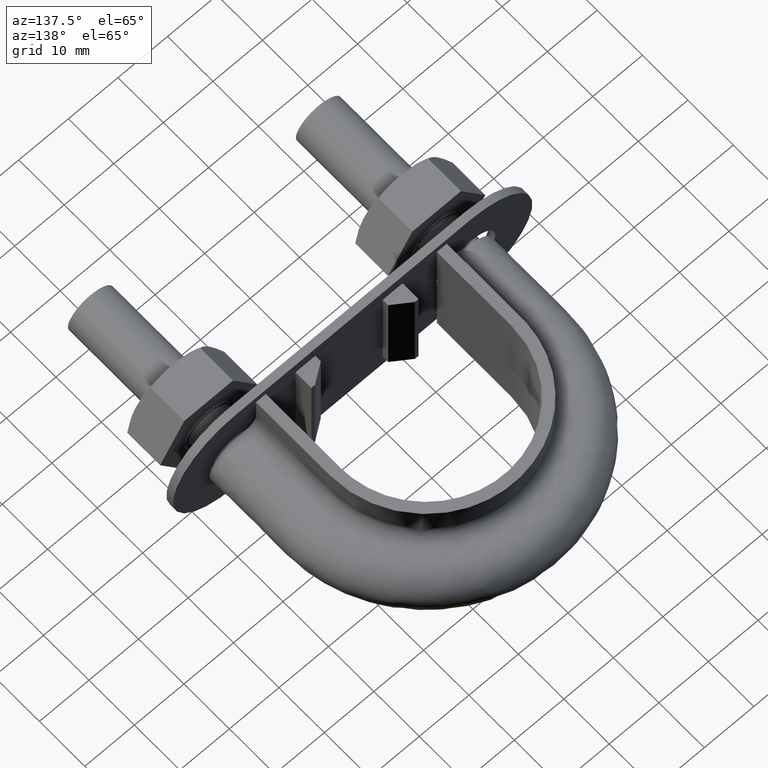
[diagram: clean part render]
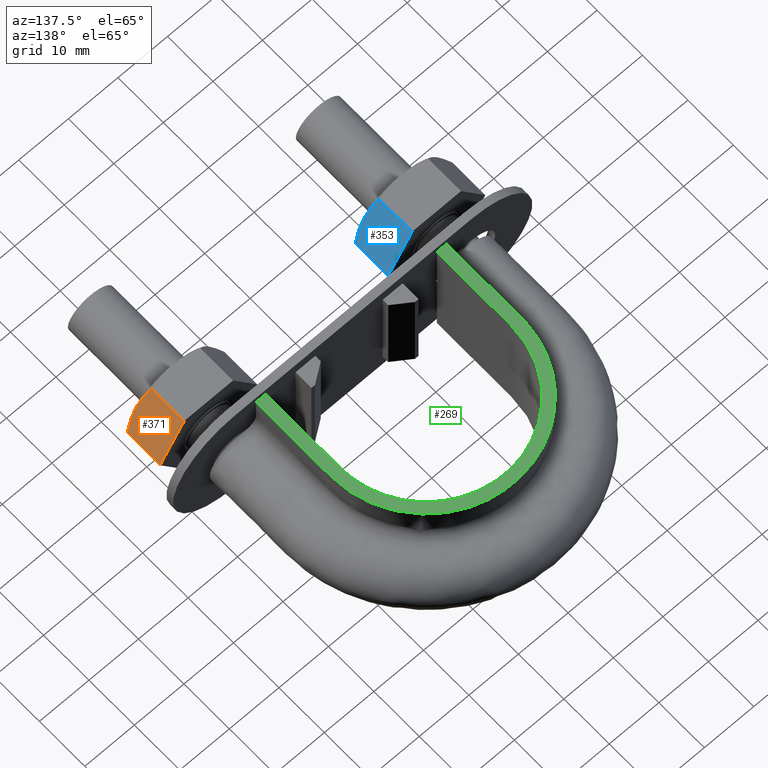
[diagram: same view with three faces highlighted in distinct colors, each labeled with its STEP entity id]
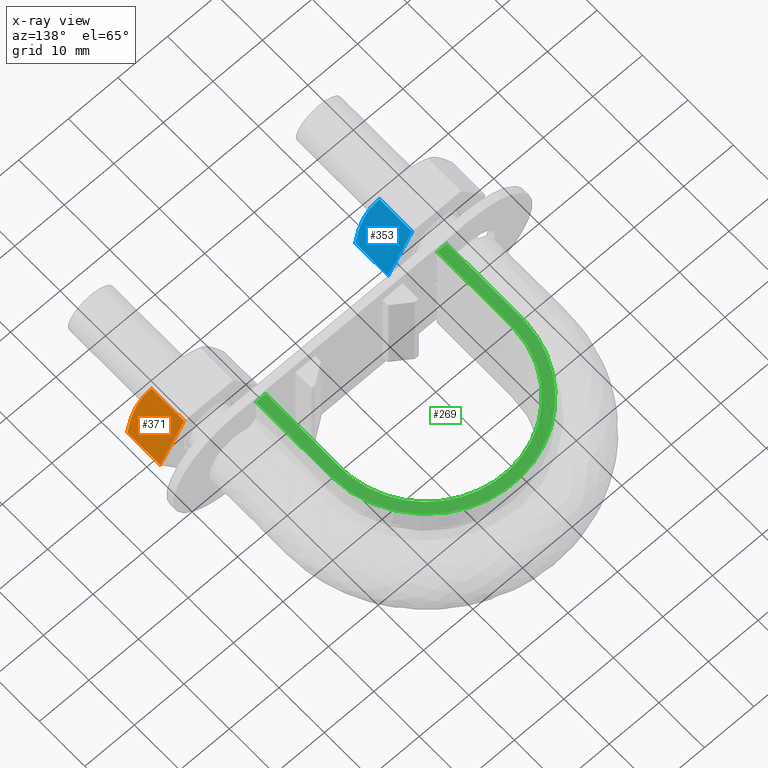
[diagram: x-ray of the same camera — body ghosted, the three highlighted faces saturated]
A machine part, auxiliary view with three faces highlighted in distinct colors.
The next image is the same camera in x-ray (body ghosted, the three faces saturated) — at least one of them is partly hidden behind the body in this view.
Their STEP definitions:

[orange] entity #371 — the highlighted planar face has unit normal (-0.866, 0, -0.5).
#371 = ADVANCED_FACE( '', ( #616 ), #617, .F. );
#616 = FACE_OUTER_BOUND( '', #1694, .T. );
#617 = PLANE( '', #1695 );
#1694 = EDGE_LOOP( '', ( #2460, #2461, #2462, #2463, #2464 ) );
#1695 = AXIS2_PLACEMENT_3D( '', #2465, #2466, #2467 );
#2460 = ORIENTED_EDGE( '', *, *, #2702, .F. );
#2461 = ORIENTED_EDGE( '', *, *, #2706, .F. );
#2462 = ORIENTED_EDGE( '', *, *, #2743, .F. );
#2463 = ORIENTED_EDGE( '', *, *, #2744, .F. );
#2464 = ORIENTED_EDGE( '', *, *, #2745, .F. );
#2465 = CARTESIAN_POINT( '', ( 27.9074772888217, 26.0000000000000, 8.49999999959008 ) );
#2466 = DIRECTION( '', ( -0.866025403826197, 3.65183836625084E-016, -0.499999999927673 ) );
#2467 = DIRECTION( '', ( -0.499999999927673, 0.000000000000000, 0.866025403826197 ) );
#2702 = EDGE_CURVE( '', #3058, #3054, #3060, .T. );
#2706 = EDGE_CURVE( '', #3065, #3058, #3067, .T. );
#2743 = EDGE_CURVE( '', #3128, #3065, #3129, .F. );
#2744 = EDGE_CURVE( '', #3130, #3128, #3131, .T. );
#2745 = EDGE_CURVE( '', #3054, #3130, #3132, .T. );
#3054 = VERTEX_POINT( '', #3780 );
#3058 = VERTEX_POINT( '', #3789 );
#3060 = B_SPLINE_CURVE_WITH_KNOTS( '', 3, ( #3791, #3792, #3793, #3794, #3795, #3796 ), .UNSPECIFIED., .F., .F., ( 4, 2, 4 ), ( 8.67361737988404E-019, 0.00246745482903609, 0.00493490965807218 ), .UNSPECIFIED. );
#3065 = VERTEX_POINT( '', #3806 );
#3067 = B_SPLINE_CURVE_WITH_KNOTS( '', 3, ( #3808, #3809, #3810, #3811, #3812, #3813 ), .UNSPECIFIED., .F., .F., ( 4, 2, 4 ), ( 2.91223597731713E-017, 0.00246745482903606, 0.00493490965807210 ), .UNSPECIFIED. );
#3128 = VERTEX_POINT( '', #3929 );
#3129 = LINE( '', #3930, #3931 );
#3130 = VERTEX_POINT( '', #3932 );
#3131 = LINE( '', #3933, #3934 );
#3132 = LINE( '', #3935, #3936 );
#3780 = CARTESIAN_POINT( '', ( 27.9224662532239, 18.7505553499468, 8.47403835168753 ) );
#3789 = CARTESIAN_POINT( '', ( 30.3612159325227, 18.0000000000003, 4.24999999938519 ) );
#3791 = CARTESIAN_POINT( '', ( 30.3612159325226, 18.0000000000003, 4.24999999938518 ) );
#3792 = CARTESIAN_POINT( '', ( 29.9451329574875, 18.0000000000003, 4.97067685244951 ) );
#3793 = CARTESIAN_POINT( '', ( 29.5345628087994, 18.0716504305293, 5.68180521018555 ) );
#3794 = CARTESIAN_POINT( '', ( 28.7224943449282, 18.3328582843709, 7.08834904910605 ) );
#3795 = CARTESIAN_POINT( '', ( 28.3209300794792, 18.5215585493659, 7.78387875950211 ) );
#3796 = CARTESIAN_POINT( '', ( 27.9224662532240, 18.7505553499468, 8.47403835168750 ) );
#3806 = CARTESIAN_POINT( '', ( 32.7999656118213, 18.7505553499468, 0.0259616470828684 ) );
#3808 = CARTESIAN_POINT( '', ( 32.7999656118213, 18.7505553499468, 0.0259616470828944 ) );
#3809 = CARTESIAN_POINT( '', ( 32.4015017855661, 18.5215585493659, 0.716121239268269 ) );
#3810 = CARTESIAN_POINT( '', ( 31.9999375201170, 18.3328582843709, 1.41165094966437 ) );
#3811 = CARTESIAN_POINT( '', ( 31.1878690562459, 18.0716504305293, 2.81819478858484 ) );
#3812 = CARTESIAN_POINT( '', ( 30.7772989075578, 18.0000000000003, 3.52932314632086 ) );
#3813 = CARTESIAN_POINT( '', ( 30.3612159325226, 18.0000000000003, 4.24999999938518 ) );
#3929 = CARTESIAN_POINT( '', ( 32.7999656118213, 26.0000000000000, 0.0259616470828523 ) );
#3930 = CARTESIAN_POINT( '', ( 32.7999656118213, 26.0000000000000, 0.0259616470828505 ) );
#3931 = VECTOR( '', #4265, 1000.00000000000 );
#3932 = CARTESIAN_POINT( '', ( 27.9224662532239, 26.0000000000000, 8.47403835168756 ) );
#3933 = CARTESIAN_POINT( '', ( 27.9112159328771, 26.0000000000000, 8.49352447813351 ) );
#3934 = VECTOR( '', #4266, 1000.00000000000 );
#3935 = CARTESIAN_POINT( '', ( 27.9224662532239, 26.0000000000000, 8.47403835168756 ) );
#3936 = VECTOR( '', #4267, 1000.00000000000 );
#4265 = DIRECTION( '', ( 2.44921270764475E-016, 1.00000000000000, 3.06151588455595E-016 ) );
#4266 = DIRECTION( '', ( 0.499999999927673, 1.42674417659764E-016, -0.866025403826197 ) );
#4267 = DIRECTION( '', ( 2.44921270764475E-016, 1.00000000000000, 3.06151588455595E-016 ) );

[blue] entity #353 — the highlighted planar face has unit normal (-0.866, 0, -0.5).
#353 = ADVANCED_FACE( '', ( #577 ), #578, .F. );
#577 = FACE_OUTER_BOUND( '', #1655, .T. );
#578 = PLANE( '', #1656 );
#1655 = EDGE_LOOP( '', ( #2329, #2330, #2331, #2332, #2333 ) );
#1656 = AXIS2_PLACEMENT_3D( '', #2334, #2335, #2336 );
#2329 = ORIENTED_EDGE( '', *, *, #2650, .F. );
#2330 = ORIENTED_EDGE( '', *, *, #2698, .F. );
#2331 = ORIENTED_EDGE( '', *, *, #2696, .F. );
#2332 = ORIENTED_EDGE( '', *, *, #2672, .F. );
#2333 = ORIENTED_EDGE( '', *, *, #2685, .F. );
#2334 = CARTESIAN_POINT( '', ( -18.0925227111783, 26.0000000000000, 8.49999999959008 ) );
#2335 = DIRECTION( '', ( -0.866025403826197, 3.65183836625084E-016, -0.499999999927673 ) );
#2336 = DIRECTION( '', ( -0.499999999927673, 0.000000000000000, 0.866025403826197 ) );
#2650 = EDGE_CURVE( '', #2972, #2968, #2974, .T. );
#2672 = EDGE_CURVE( '', #3014, #3016, #3017, .T. );
#2685 = EDGE_CURVE( '', #2968, #3014, #3034, .T. );
#2696 = EDGE_CURVE( '', #3016, #3048, #3050, .F. );
#2698 = EDGE_CURVE( '', #3048, #2972, #3052, .T. );
#2968 = VERTEX_POINT( '', #3616 );
#2972 = VERTEX_POINT( '', #3625 );
#2974 = B_SPLINE_CURVE_WITH_KNOTS( '', 3, ( #3627, #3628, #3629, #3630, #3631, #3632 ), .UNSPECIFIED., .F., .F., ( 4, 2, 4 ), ( 8.67361737988404E-019, 0.00246745482903609, 0.00493490965807217 ), .UNSPECIFIED. );
#3014 = VERTEX_POINT( '', #3705 );
#3016 = VERTEX_POINT( '', #3707 );
#3017 = LINE( '', #3708, #3709 );
#3034 = LINE( '', #3736, #3737 );
#3048 = VERTEX_POINT( '', #3768 );
#3050 = LINE( '', #3770, #3771 );
#3052 = B_SPLINE_CURVE_WITH_KNOTS( '', 3, ( #3773, #3774, #3775, #3776, #3777, #3778 ), .UNSPECIFIED., .F., .F., ( 4, 2, 4 ), ( 3.14951050581730E-017, 0.00246745482903606, 0.00493490965807209 ), .UNSPECIFIED. );
#3616 = CARTESIAN_POINT( '', ( -18.0775337467761, 18.7505553499468, 8.47403835168753 ) );
#3625 = CARTESIAN_POINT( '', ( -15.6387840674773, 18.0000000000003, 4.24999999938519 ) );
#3627 = CARTESIAN_POINT( '', ( -15.6387840674774, 18.0000000000003, 4.24999999938518 ) );
#3628 = CARTESIAN_POINT( '', ( -16.0548670425125, 18.0000000000003, 4.97067685244952 ) );
#3629 = CARTESIAN_POINT( '', ( -16.4654371912006, 18.0716504305293, 5.68180521018555 ) );
#3630 = CARTESIAN_POINT( '', ( -17.2775056550717, 18.3328582843709, 7.08834904910605 ) );
#3631 = CARTESIAN_POINT( '', ( -17.6790699205208, 18.5215585493659, 7.78387875950211 ) );
#3632 = CARTESIAN_POINT( '', ( -18.0775337467760, 18.7505553499468, 8.47403835168750 ) );
#3705 = CARTESIAN_POINT( '', ( -18.0775337467761, 26.0000000000000, 8.47403835168756 ) );
#3707 = CARTESIAN_POINT( '', ( -13.2000343881787, 26.0000000000000, 0.0259616470828536 ) );
#3708 = CARTESIAN_POINT( '', ( -18.0887840671229, 26.0000000000000, 8.49352447813351 ) );
#3709 = VECTOR( '', #4153, 1000.00000000000 );
#3736 = CARTESIAN_POINT( '', ( -18.0775337467761, 26.0000000000000, 8.47403835168756 ) );
#3737 = VECTOR( '', #4177, 1000.00000000000 );
#3768 = CARTESIAN_POINT( '', ( -13.2000343881787, 18.7505553499468, 0.0259616470828692 ) );
#3770 = CARTESIAN_POINT( '', ( -13.2000343881787, 26.0000000000000, 0.0259616470828505 ) );
#3771 = VECTOR( '', #4195, 1000.00000000000 );
#3773 = CARTESIAN_POINT( '', ( -13.2000343881787, 18.7505553499468, 0.0259616470828960 ) );
#3774 = CARTESIAN_POINT( '', ( -13.5984982144339, 18.5215585493659, 0.716121239268271 ) );
#3775 = CARTESIAN_POINT( '', ( -14.0000624798830, 18.3328582843709, 1.41165094966437 ) );
#3776 = CARTESIAN_POINT( '', ( -14.8121309437541, 18.0716504305293, 2.81819478858485 ) );
#3777 = CARTESIAN_POINT( '', ( -15.2227010924422, 18.0000000000003, 3.52932314632086 ) );
#3778 = CARTESIAN_POINT( '', ( -15.6387840674774, 18.0000000000003, 4.24999999938518 ) );
#4153 = DIRECTION( '', ( 0.499999999927673, 1.42674417659764E-016, -0.866025403826197 ) );
#4177 = DIRECTION( '', ( 2.44921270764475E-016, 1.00000000000000, 3.06151588455595E-016 ) );
#4195 = DIRECTION( '', ( 2.44921270764475E-016, 1.00000000000000, 3.06151588455595E-016 ) );

[green] entity #269 — the highlighted planar face has unit normal (0, 0, 1).
#269 = ADVANCED_FACE( '', ( #385 ), #386, .T. );
#385 = FACE_OUTER_BOUND( '', #787, .T. );
#386 = PLANE( '', #788 );
#787 = EDGE_LOOP( '', ( #1720, #1721, #1722, #1723 ) );
#788 = AXIS2_PLACEMENT_3D( '', #1724, #1725, #1726 );
#1720 = ORIENTED_EDGE( '', *, *, #2518, .T. );
#1721 = ORIENTED_EDGE( '', *, *, #2523, .T. );
#1722 = ORIENTED_EDGE( '', *, *, #2524, .T. );
#1723 = ORIENTED_EDGE( '', *, *, #2525, .T. );
#1724 = CARTESIAN_POINT( '', ( 35.0000000000000, 82.3000000000000, 12.5000000000000 ) );
#1725 = DIRECTION( '', ( 0.000000000000000, 0.000000000000000, 1.00000000000000 ) );
#1726 = DIRECTION( '', ( 1.00000000000000, 0.000000000000000, 0.000000000000000 ) );
#2518 = EDGE_CURVE( '', #2754, #2752, #2755, .T. );
#2523 = EDGE_CURVE( '', #2752, #2763, #2764, .T. );
#2524 = EDGE_CURVE( '', #2763, #2765, #2766, .T. );
#2525 = EDGE_CURVE( '', #2765, #2754, #2767, .T. );
#2752 = VERTEX_POINT( '', #3140 );
#2754 = VERTEX_POINT( '', #3143 );
#2755 = LINE( '', #3144, #3145 );
#2763 = VERTEX_POINT( '', #3202 );
#2764 = B_SPLINE_CURVE_WITH_KNOTS( '', 3, ( #3203, #3204, #3205, #3206, #3207, #3208, #3209, #3210, #3211, #3212, #3213, #3214, #3215, #3216, #3217, #3218, #3219 ), .UNSPECIFIED., .F., .F., ( 4, 3, 1, 1, 1, 1, 1, 1, 1, 3, 4 ), ( 0.138743455497382, 1.00000000000000, 1.50000000000000, 2.00000000000000, 3.00000000000000, 4.00000000000000, 5.00000000000000, 6.00000000000000, 6.50000000000000, 7.00000000000000, 7.86125654450262 ), .UNSPECIFIED. );
#2765 = VERTEX_POINT( '', #3220 );
#2766 = LINE( '', #3221, #3222 );
#2767 = B_SPLINE_CURVE_WITH_KNOTS( '', 3, ( #3223, #3224, #3225, #3226, #3227, #3228, #3229, #3230, #3231, #3232, #3233, #3234, #3235, #3236, #3237, #3238, #3239 ), .UNSPECIFIED., .F., .F., ( 4, 3, 1, 1, 1, 1, 1, 1, 1, 3, 4 ), ( -7.86125654450262, -7.00000000000000, -6.50000000000000, -6.00000000000000, -5.00000000000000, -4.00000000000000, -3.00000000000000, -2.00000000000000, -1.50000000000000, -1.00000000000000, -0.138743455497382 ), .UNSPECIFIED. );
#3140 = CARTESIAN_POINT( '', ( -17.2500000000000, 32.3000000000000, 12.5000000000000 ) );
#3143 = CARTESIAN_POINT( '', ( -19.2500000000000, 32.3000000000000, 12.5000000000000 ) );
#3144 = CARTESIAN_POINT( '', ( -35.0000000000000, 32.3000000000000, 12.5000000000000 ) );
#3145 = VECTOR( '', #3944, 1000.00000000000 );
#3202 = CARTESIAN_POINT( '', ( 17.2500000000000, 32.3000000000000, 12.5000000000000 ) );
#3203 = CARTESIAN_POINT( '', ( -17.2500000000000, 32.3000000000000, 12.5000000000000 ) );
#3204 = CARTESIAN_POINT( '', ( -17.2500000000000, 37.7833333333333, 12.5000000000000 ) );
#3205 = CARTESIAN_POINT( '', ( -17.2500000000000, 43.2666666666667, 12.5000000000000 ) );
#3206 = CARTESIAN_POINT( '', ( -17.2500000000000, 48.7500000000000, 12.5000000000000 ) );
#3207 = CARTESIAN_POINT( '', ( -17.2500000000000, 50.2426934616576, 12.5000000000000 ) );
#3208 = CARTESIAN_POINT( '', ( -16.8447140772576, 53.2689573264767, 12.5000000000000 ) );
#3209 = CARTESIAN_POINT( '', ( -14.5369669940350, 58.8768798182963, 12.5000000000000 ) );
#3210 = CARTESIAN_POINT( '', ( -9.02779989662052, 64.3882950029496, 12.5000000000000 ) );
#3211 = CARTESIAN_POINT( '', ( 8.18108714422145E-015, 66.8058524985252, 12.5000000000000 ) );
#3212 = CARTESIAN_POINT( '', ( 9.02779989662053, 64.3882950029496, 12.5000000000000 ) );
#3213 = CARTESIAN_POINT( '', ( 14.5369669940350, 58.8768798182963, 12.5000000000000 ) );
#3214 = CARTESIAN_POINT( '', ( 16.8447140772576, 53.2689573264767, 12.5000000000000 ) );
#3215 = CARTESIAN_POINT( '', ( 17.2500000000000, 50.2426934616576, 12.5000000000000 ) );
#3216 = CARTESIAN_POINT( '', ( 17.2500000000000, 48.7500000000000, 12.5000000000000 ) );
#3217 = CARTESIAN_POINT( '', ( 17.2500000000000, 43.2666666666667, 12.5000000000000 ) );
#3218 = CARTESIAN_POINT( '', ( 17.2500000000000, 37.7833333333333, 12.5000000000000 ) );
#3219 = CARTESIAN_POINT( '', ( 17.2500000000000, 32.3000000000000, 12.5000000000000 ) );
#3220 = CARTESIAN_POINT( '', ( 19.2500000000000, 32.3000000000000, 12.5000000000000 ) );
#3221 = CARTESIAN_POINT( '', ( -35.0000000000000, 32.3000000000000, 12.5000000000000 ) );
#3222 = VECTOR( '', #3946, 1000.00000000000 );
#3223 = CARTESIAN_POINT( '', ( 19.2500000000000, 32.3000000000000, 12.5000000000000 ) );
#3224 = CARTESIAN_POINT( '', ( 19.2500000000000, 37.7833333333333, 12.5000000000000 ) );
#3225 = CARTESIAN_POINT( '', ( 19.2500000000000, 43.2666666666667, 12.5000000000000 ) );
#3226 = CARTESIAN_POINT( '', ( 19.2500000000000, 48.7500000000000, 12.5000000000000 ) );
#3227 = CARTESIAN_POINT( '', ( 19.2500000000000, 50.4213262566117, 12.5000000000000 ) );
#3228 = CARTESIAN_POINT( '', ( 18.7986999693754, 53.7906376447289, 12.5000000000000 ) );
#3229 = CARTESIAN_POINT( '', ( 16.2218507540710, 60.0523173587673, 12.5000000000000 ) );
#3230 = CARTESIAN_POINT( '', ( 10.0746787092408, 66.2009555474490, 12.5000000000000 ) );
#3231 = CARTESIAN_POINT( '', ( 1.36416496972927E-014, 68.8995222262755, 12.5000000000000 ) );
#3232 = CARTESIAN_POINT( '', ( -10.0746787092407, 66.2009555474490, 12.5000000000000 ) );
#3233 = CARTESIAN_POINT( '', ( -16.2218507540710, 60.0523173587674, 12.5000000000000 ) );
#3234 = CARTESIAN_POINT( '', ( -18.7986999693754, 53.7906376447289, 12.5000000000000 ) );
#3235 = CARTESIAN_POINT( '', ( -19.2500000000000, 50.4213262566117, 12.5000000000000 ) );
#3236 = CARTESIAN_POINT( '', ( -19.2500000000000, 48.7500000000000, 12.5000000000000 ) );
#3237 = CARTESIAN_POINT( '', ( -19.2500000000000, 43.2666666666667, 12.5000000000000 ) );
#3238 = CARTESIAN_POINT( '', ( -19.2500000000000, 37.7833333333333, 12.5000000000000 ) );
#3239 = CARTESIAN_POINT( '', ( -19.2500000000000, 32.3000000000000, 12.5000000000000 ) );
#3944 = DIRECTION( '', ( 1.00000000000000, -1.22460635382238E-016, 0.000000000000000 ) );
#3946 = DIRECTION( '', ( 1.00000000000000, -1.22460635382238E-016, 0.000000000000000 ) );